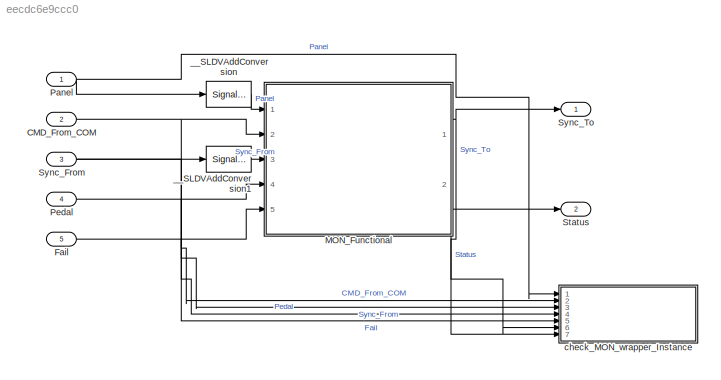
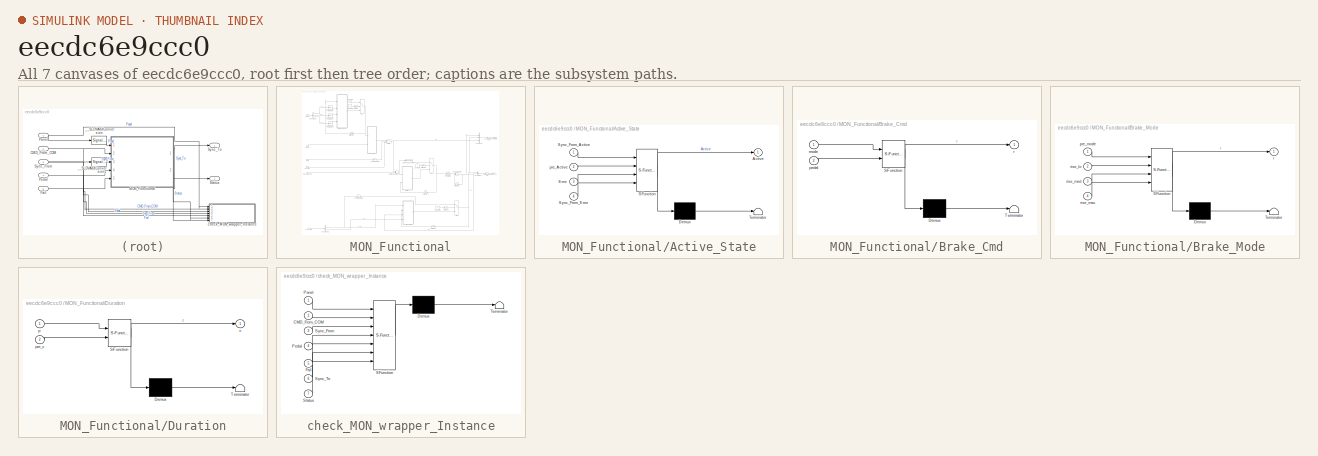
[diagram: thumbnail index - all 7 canvases of the model, root first then tree order]
MODEL slx_eecdc6e9ccc0
KIND model
CONFIG AbsTol = auto
CONFIG FixedStep = auto
CONFIG MaxStep = auto
CONFIG MinStep = auto
CONFIG RelTol = 1e-3
CONFIG SampleTimeConstraint = Unconstrained
CONFIG Solver = FixedStepDiscrete
CONFIG SolverMode = Auto
CONFIG SolverName = FixedStepDiscrete
CONFIG StartTime = 0.0
CONFIG StopTime = 10.0
BLOCK [Inport] CMD_From_COM
  IconDisplay = Port number
  Interpolate = off
  OutDataTypeStr = int32
  Port = 2
  SampleTime = dt
BLOCK [Inport] Fail
  IconDisplay = Port number
  Interpolate = off
  OutDataTypeStr = boolean
  Port = 5
  SampleTime = dt
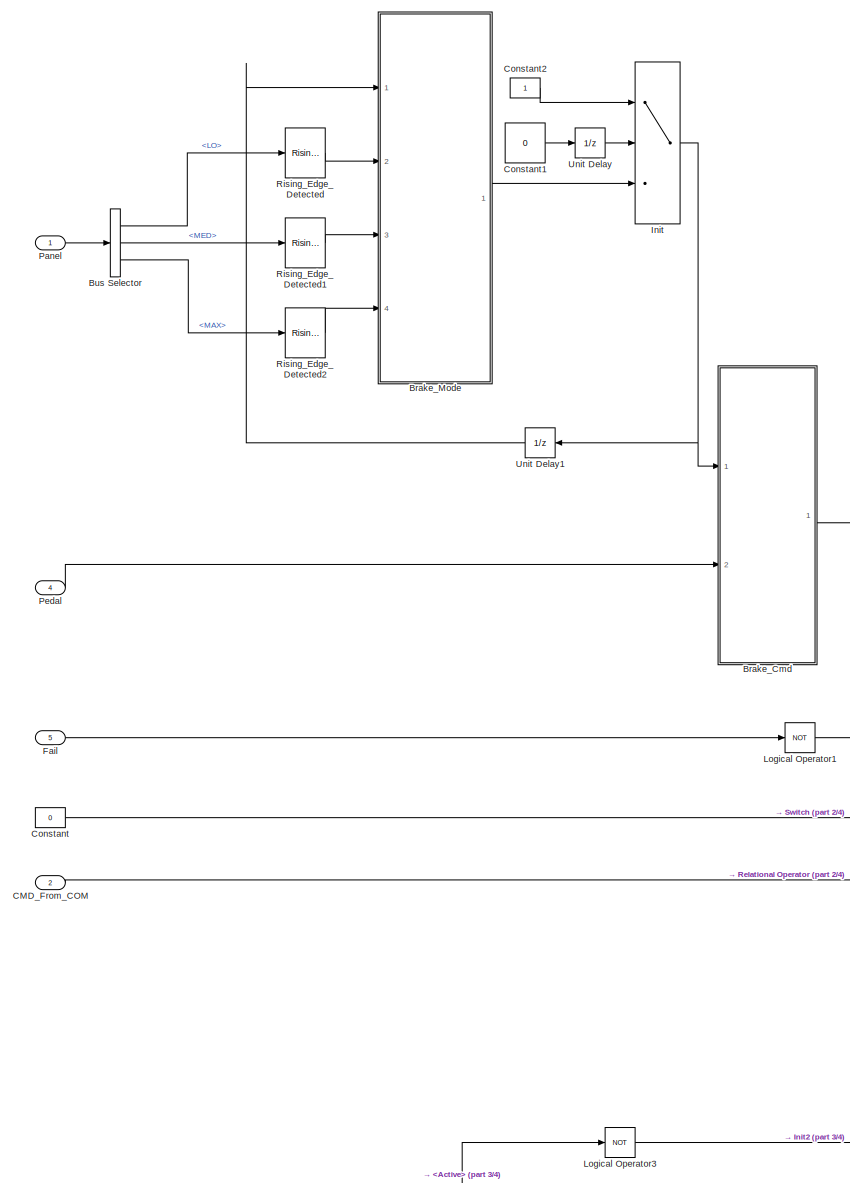
[diagram: MON_Functional - part 1/4, left side, full height]
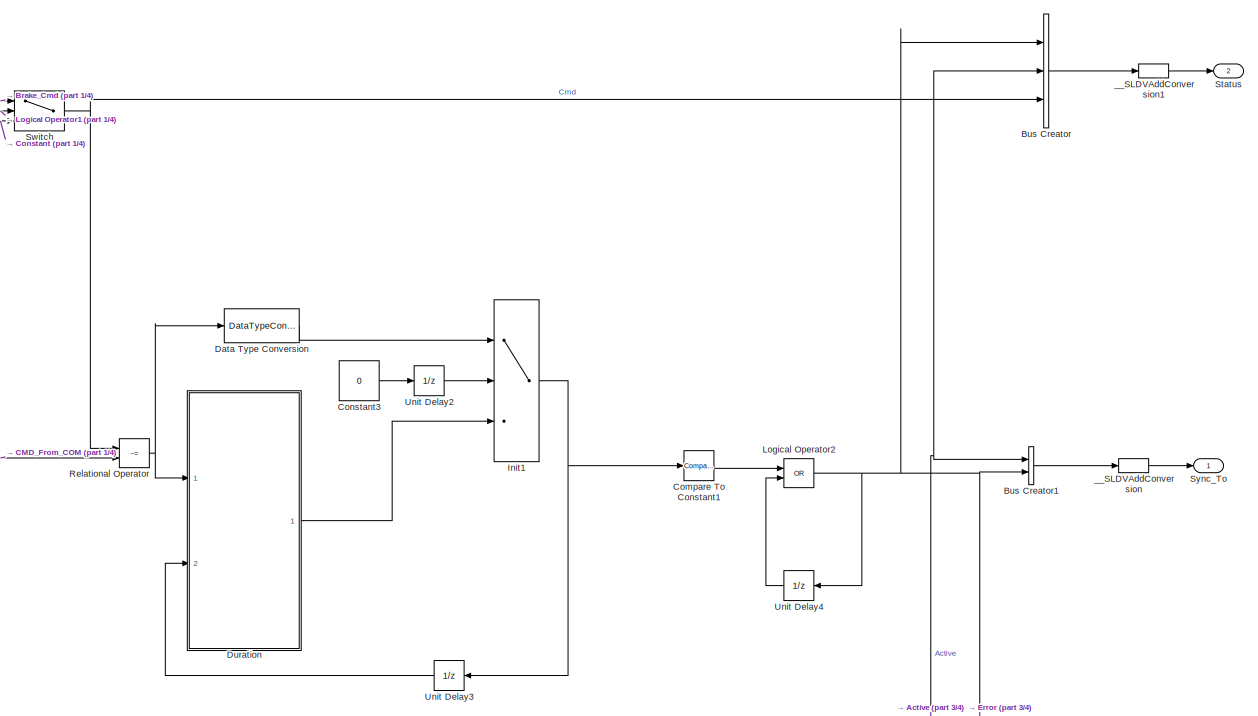
[diagram: MON_Functional - part 2/4, middle right region]
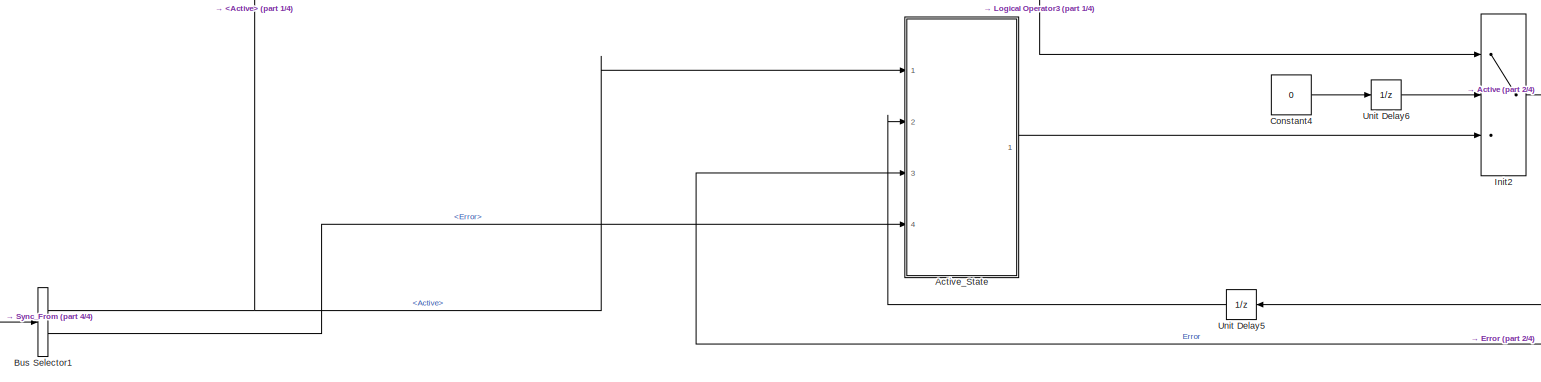
[diagram: MON_Functional - part 3/4, bottom center region]
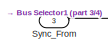
[diagram: MON_Functional - part 4/4, bottom left region]
BLOCK [SubSystem] MON_Functional
  Ports = [5, 2]
  RequestExecContextInheritance = off
  TreatAsAtomicUnit = on
  Variant = off
BLOCK [SubSystem] MON_Functional/Active_State
  ErrorFcn = Stateflow.Translate.translate
  PermitHierarchicalResolution = ExplicitOnly
  Ports = [4, 1]
  RequestExecContextInheritance = off
  SFBlockType = Chart
  TreatAsAtomicUnit = on
  Variant = off
BLOCK [Demux] MON_Functional/Active_State/ Demux 
  Outputs = 1
  Ports = [1, 1]
BLOCK [S-Function] MON_Functional/Active_State/ SFunction 
  EnableBusSupport = on
  FunctionName = sf_sfun
  Parameters = Primary_Side
  PortCounts = [4 2]
  Ports = [4, 2]
  SFunctionDeploymentMode = off
  Tag = Stateflow S-Function MON_sl_after_replacement2 4
BLOCK [Terminator] MON_Functional/Active_State/ Terminator 
BLOCK [Outport] MON_Functional/Active_State/Active
  IconDisplay = Port number
BLOCK [Inport] MON_Functional/Active_State/Error
  IconDisplay = Port number
  Port = 3
BLOCK [Inport] MON_Functional/Active_State/Sync_From_Active
  IconDisplay = Port number
BLOCK [Inport] MON_Functional/Active_State/Sync_From_Error
  IconDisplay = Port number
  Port = 4
BLOCK [Inport] MON_Functional/Active_State/pre_Active
  IconDisplay = Port number
  Port = 2
BLOCK [SubSystem] MON_Functional/Brake_Cmd
  ErrorFcn = Stateflow.Translate.translate
  PermitHierarchicalResolution = ExplicitOnly
  Ports = [2, 1]
  RequestExecContextInheritance = off
  SFBlockType = Chart
  TreatAsAtomicUnit = on
  Variant = off
BLOCK [Demux] MON_Functional/Brake_Cmd/ Demux 
  Outputs = 1
  Ports = [1, 1]
BLOCK [S-Function] MON_Functional/Brake_Cmd/ SFunction 
  EnableBusSupport = on
  FunctionName = sf_sfun
  Parameters = BRAKE_PRESSURE_LO,BRAKE_PRESSURE_MAX,BRAKE_PRESSURE_MED,LO,MANUAL,MAX,MED
  PortCounts = [2 2]
  Ports = [2, 2]
  SFunctionDeploymentMode = off
  Tag = Stateflow S-Function MON_sl_after_replacement2 1
BLOCK [Terminator] MON_Functional/Brake_Cmd/ Terminator 
BLOCK [Inport] MON_Functional/Brake_Cmd/mode
  IconDisplay = Port number
BLOCK [Inport] MON_Functional/Brake_Cmd/pedal
  IconDisplay = Port number
  Port = 2
BLOCK [Outport] MON_Functional/Brake_Cmd/r
  IconDisplay = Port number
BLOCK [SubSystem] MON_Functional/Brake_Mode
  ErrorFcn = Stateflow.Translate.translate
  PermitHierarchicalResolution = ExplicitOnly
  Ports = [4, 1]
  RequestExecContextInheritance = off
  SFBlockType = Chart
  TreatAsAtomicUnit = on
  Variant = off
BLOCK [Demux] MON_Functional/Brake_Mode/ Demux 
  Outputs = 1
  Ports = [1, 1]
BLOCK [S-Function] MON_Functional/Brake_Mode/ SFunction 
  EnableBusSupport = on
  FunctionName = sf_sfun
  Parameters = LO,MANUAL,MAX,MED
  PortCounts = [4 2]
  Ports = [4, 2]
  SFunctionDeploymentMode = off
  Tag = Stateflow S-Function MON_sl_after_replacement2 3
BLOCK [Terminator] MON_Functional/Brake_Mode/ Terminator 
BLOCK [Inport] MON_Functional/Brake_Mode/pre_mode
  IconDisplay = Port number
BLOCK [Outport] MON_Functional/Brake_Mode/r
  IconDisplay = Port number
BLOCK [Inport] MON_Functional/Brake_Mode/rise_lo
  IconDisplay = Port number
  Port = 2
BLOCK [Inport] MON_Functional/Brake_Mode/rise_max
  IconDisplay = Port number
  Port = 4
BLOCK [Inport] MON_Functional/Brake_Mode/rise_med
  IconDisplay = Port number
  Port = 3
BLOCK [BusCreator] MON_Functional/Bus Creator
  DisplayOption = bar
  InheritFromInputs = on
  Inputs = 'Error','Active','Cmd'
  NonVirtualBus = on
  OutDataTypeStr = Bus: ChannelStatusImpl
  Ports = [3, 1]
BLOCK [BusCreator] MON_Functional/Bus Creator1
  DisplayOption = bar
  InheritFromInputs = on
  Inputs = 'Active','Error'
  NonVirtualBus = on
  OutDataTypeStr = Bus: SyncMsgImpl
  Ports = [2, 1]
BLOCK [BusSelector] MON_Functional/Bus Selector
  OutputSignals = LO,MED,MAX
  Ports = [1, 3]
BLOCK [BusSelector] MON_Functional/Bus Selector1
  OutputSignals = Active,Error
  Ports = [1, 2]
BLOCK [Inport] MON_Functional/CMD_From_COM
  IconDisplay = Port number
  OutDataTypeStr = int32
  Port = 2
  PortDimensions = 1
  SampleTime = [0.01,0]
  SamplingMode = Sample based
  SignalType = real
BLOCK [Reference] MON_Functional/Compare To Constant1  REF=simulink/Logic and Bit
Operations/Compare
To Constant
  Ports = [1, 1]
  SourceBlock = simulink/Logic and Bit\nOperations/Compare\nTo Constant
  SourceType = Compare To Constant
BLOCK [Constant] MON_Functional/Constant
  OutDataTypeStr = int32
  Value = 0
BLOCK [Constant] MON_Functional/Constant1
  DisableCoverage = on
  OutDataTypeStr = boolean
  Value = 0
BLOCK [Constant] MON_Functional/Constant2
  OutDataTypeStr = int32
BLOCK [Constant] MON_Functional/Constant3
  DisableCoverage = on
  OutDataTypeStr = boolean
  Value = 0
BLOCK [Constant] MON_Functional/Constant4
  DisableCoverage = on
  OutDataTypeStr = boolean
  Value = 0
BLOCK [DataTypeConversion] MON_Functional/Data Type Conversion
  OutDataTypeStr = int32
  RndMeth = Floor
  SaturateOnIntegerOverflow = off
BLOCK [SubSystem] MON_Functional/Duration
  ErrorFcn = Stateflow.Translate.translate
  PermitHierarchicalResolution = ExplicitOnly
  Ports = [2, 1]
  RequestExecContextInheritance = off
  SFBlockType = Chart
  TreatAsAtomicUnit = on
  Variant = off
BLOCK [Demux] MON_Functional/Duration/ Demux 
  Outputs = 1
  Ports = [1, 1]
BLOCK [S-Function] MON_Functional/Duration/ SFunction 
  EnableBusSupport = on
  FunctionName = sf_sfun
  PortCounts = [2 2]
  Ports = [2, 2]
  SFunctionDeploymentMode = off
  Tag = Stateflow S-Function MON_sl_after_replacement2 5
BLOCK [Terminator] MON_Functional/Duration/ Terminator 
BLOCK [Outport] MON_Functional/Duration/c
  IconDisplay = Port number
BLOCK [Inport] MON_Functional/Duration/p
  IconDisplay = Port number
BLOCK [Inport] MON_Functional/Duration/pre_c
  IconDisplay = Port number
  Port = 2
BLOCK [Inport] MON_Functional/Fail
  IconDisplay = Port number
  OutDataTypeStr = boolean
  Port = 5
  PortDimensions = 1
  SampleTime = [0.01,0]
  SamplingMode = Sample based
  SignalType = real
BLOCK [Switch] MON_Functional/Init
  Criteria = u2 ~= 0
  OutDataTypeStr = Inherit: Inherit via back propagation
  SaturateOnIntegerOverflow = off
  ZeroCross = off
BLOCK [Switch] MON_Functional/Init1
  Criteria = u2 ~= 0
  OutDataTypeStr = Inherit: Inherit via back propagation
  SaturateOnIntegerOverflow = off
  ZeroCross = off
BLOCK [Switch] MON_Functional/Init2
  Criteria = u2 ~= 0
  OutDataTypeStr = Inherit: Inherit via back propagation
  SaturateOnIntegerOverflow = off
  ZeroCross = off
BLOCK [Logic] MON_Functional/Logical Operator1
  Operator = NOT
  OutDataTypeStr = boolean
  Ports = [1, 1]
BLOCK [Logic] MON_Functional/Logical Operator2
  Operator = OR
  OutDataTypeStr = boolean
  Ports = [2, 1]
BLOCK [Logic] MON_Functional/Logical Operator3
  Operator = NOT
  OutDataTypeStr = boolean
  Ports = [1, 1]
BLOCK [Inport] MON_Functional/Panel
  IconDisplay = Port number
  OutDataTypeStr = Bus: PanelMsgImpl
  SampleTime = [0.01,0]
BLOCK [Inport] MON_Functional/Pedal
  IconDisplay = Port number
  OutDataTypeStr = int32
  Port = 4
  PortDimensions = 1
  SampleTime = [0.01,0]
  SamplingMode = Sample based
  SignalType = real
BLOCK [RelationalOperator] MON_Functional/Relational Operator
  Operator = ~=
  OutDataTypeStr = boolean
  Ports = [2, 1]
  ZeroCross = off
BLOCK [Reference] MON_Functional/Rising_Edge_Detected  REF=BSCU_lib/Rising_Edge_Detected
  Ports = [1, 1]
  SourceBlock = BSCU_lib/Rising_Edge_Detected
  SourceType = SubSystem
BLOCK [Reference] MON_Functional/Rising_Edge_Detected1  REF=BSCU_lib/Rising_Edge_Detected
  Ports = [1, 1]
  SourceBlock = BSCU_lib/Rising_Edge_Detected
  SourceType = SubSystem
BLOCK [Reference] MON_Functional/Rising_Edge_Detected2  REF=BSCU_lib/Rising_Edge_Detected
  Ports = [1, 1]
  SourceBlock = BSCU_lib/Rising_Edge_Detected
  SourceType = SubSystem
BLOCK [Outport] MON_Functional/Status
  IconDisplay = Port number
  OutDataTypeStr = Bus: ChannelStatusImpl
  Port = 2
BLOCK [Switch] MON_Functional/Switch
  Description = May be used within well defined functions, or functions that soley define logical expressions.
  SaturateOnIntegerOverflow = off
  Threshold = .5
  ZeroCross = off
BLOCK [Inport] MON_Functional/Sync_From
  IconDisplay = Port number
  OutDataTypeStr = Bus: SyncMsgImpl
  Port = 3
  SampleTime = [0.01,0]
BLOCK [Outport] MON_Functional/Sync_To
  IconDisplay = Port number
  OutDataTypeStr = Bus: SyncMsgImpl
BLOCK [UnitDelay] MON_Functional/Unit Delay
  AttributesFormatString = <Init = %<InitialCondition>>
  InitialCondition = 1
  InputProcessing = Elements as channels (sample based)
  SampleTime = -1
BLOCK [UnitDelay] MON_Functional/Unit Delay1
  AttributesFormatString = <Init = %<InitialCondition>>
  InitialCondition = 1
  InputProcessing = Elements as channels (sample based)
  SampleTime = -1
BLOCK [UnitDelay] MON_Functional/Unit Delay2
  AttributesFormatString = <Init = %<InitialCondition>>
  InitialCondition = 1
  InputProcessing = Elements as channels (sample based)
  SampleTime = -1
BLOCK [UnitDelay] MON_Functional/Unit Delay3
  AttributesFormatString = <Init = %<InitialCondition>>
  InputProcessing = Elements as channels (sample based)
  SampleTime = -1
BLOCK [UnitDelay] MON_Functional/Unit Delay4
  AttributesFormatString = <Init = %<InitialCondition>>
  InputProcessing = Elements as channels (sample based)
  SampleTime = -1
BLOCK [UnitDelay] MON_Functional/Unit Delay5
  AttributesFormatString = <Init = %<InitialCondition>>
  InputProcessing = Elements as channels (sample based)
  SampleTime = -1
BLOCK [UnitDelay] MON_Functional/Unit Delay6
  AttributesFormatString = <Init = %<InitialCondition>>
  InitialCondition = 1
  InputProcessing = Elements as channels (sample based)
  SampleTime = -1
BLOCK [SignalConversion] MON_Functional/__SLDVAddConversion
  ConversionOutput = Virtual bus
  OverrideOpt = off
BLOCK [SignalConversion] MON_Functional/__SLDVAddConversion1
  ConversionOutput = Virtual bus
  OverrideOpt = off
BLOCK [Inport] Panel
  BusOutputAsStruct = on
  IconDisplay = Port number
  Interpolate = off
  OutDataTypeStr = Bus: PanelMsgImpl
  SampleTime = dt
BLOCK [Inport] Pedal
  IconDisplay = Port number
  Interpolate = off
  OutDataTypeStr = int32
  Port = 4
  SampleTime = dt
BLOCK [Outport] Status
  BusOutputAsStruct = on
  IconDisplay = Port number
  OutDataTypeStr = Bus: ChannelStatusImpl
  Port = 2
BLOCK [Inport] Sync_From
  BusOutputAsStruct = on
  IconDisplay = Port number
  Interpolate = off
  OutDataTypeStr = Bus: SyncMsgImpl
  Port = 3
  SampleTime = dt
BLOCK [Outport] Sync_To
  BusOutputAsStruct = on
  IconDisplay = Port number
  OutDataTypeStr = Bus: SyncMsgImpl
BLOCK [SignalConversion] __SLDVAddConversion
  ConversionOutput = Virtual bus
  OverrideOpt = off
BLOCK [SignalConversion] __SLDVAddConversion1
  ConversionOutput = Virtual bus
  OverrideOpt = off
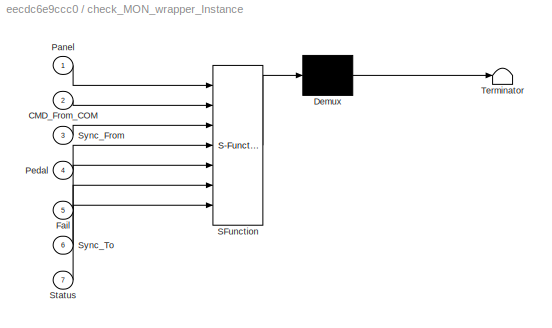
BLOCK [SubSystem] check_MON_wrapper_Instance
  ErrorFcn = Stateflow.Translate.translate
  PermitHierarchicalResolution = ExplicitOnly
  Ports = [7]
  RequestExecContextInheritance = off
  SFBlockType = MATLAB Function
  TreatAsAtomicUnit = on
  Variant = off
BLOCK [Demux] check_MON_wrapper_Instance/ Demux 
  Outputs = 1
  Ports = [1, 1]
BLOCK [S-Function] check_MON_wrapper_Instance/ SFunction 
  EnableBusSupport = on
  FunctionName = sf_sfun
  PortCounts = [7 1]
  Ports = [7, 1]
  SFunctionDeploymentMode = off
  Tag = Stateflow S-Function MON_sl_after_replacement2 2
BLOCK [Terminator] check_MON_wrapper_Instance/ Terminator 
BLOCK [Inport] check_MON_wrapper_Instance/CMD_From_COM
  IconDisplay = Port number
  Port = 2
BLOCK [Inport] check_MON_wrapper_Instance/Fail
  IconDisplay = Port number
  Port = 5
BLOCK [Inport] check_MON_wrapper_Instance/Panel
  IconDisplay = Port number
BLOCK [Inport] check_MON_wrapper_Instance/Pedal
  IconDisplay = Port number
  Port = 4
BLOCK [Inport] check_MON_wrapper_Instance/Status
  IconDisplay = Port number
  Port = 7
BLOCK [Inport] check_MON_wrapper_Instance/Sync_From
  IconDisplay = Port number
  Port = 3
BLOCK [Inport] check_MON_wrapper_Instance/Sync_To
  IconDisplay = Port number
  Port = 6
NET CMD_From_COM:1 -> MON_Functional:2, check_MON_wrapper_Instance:2
NET Fail:1 -> MON_Functional:5, check_MON_wrapper_Instance:5
LINE MON_Functional/Active_State:1 -> MON_Functional/Init2:3
LINE MON_Functional/Brake_Cmd:1 -> MON_Functional/Switch:1
LINE MON_Functional/Brake_Mode:1 -> MON_Functional/Init:3
LINE MON_Functional/Bus Creator1:1 -> MON_Functional/__SLDVAddConversion:1
LINE MON_Functional/Bus Creator:1 -> MON_Functional/__SLDVAddConversion1:1
NET MON_Functional/Bus Selector1:1 -> MON_Functional/Active_State:1, MON_Functional/Logical Operator3:1
LINE MON_Functional/Bus Selector1:2 -> MON_Functional/Active_State:4
LINE MON_Functional/Bus Selector:1 -> MON_Functional/Rising_Edge_Detected:1
LINE MON_Functional/Bus Selector:2 -> MON_Functional/Rising_Edge_Detected1:1
LINE MON_Functional/Bus Selector:3 -> MON_Functional/Rising_Edge_Detected2:1
LINE MON_Functional/CMD_From_COM:1 -> MON_Functional/Relational Operator:2
LINE MON_Functional/Compare To Constant1:1 -> MON_Functional/Logical Operator2:1
LINE MON_Functional/Constant1:1 -> MON_Functional/Unit Delay:1
LINE MON_Functional/Constant2:1 -> MON_Functional/Init:1
LINE MON_Functional/Constant3:1 -> MON_Functional/Unit Delay2:1
LINE MON_Functional/Constant4:1 -> MON_Functional/Unit Delay6:1
LINE MON_Functional/Constant:1 -> MON_Functional/Switch:3
LINE MON_Functional/Data Type Conversion:1 -> MON_Functional/Init1:1
LINE MON_Functional/Duration:1 -> MON_Functional/Init1:3
LINE MON_Functional/Fail:1 -> MON_Functional/Logical Operator1:1
NET MON_Functional/Init1:1 -> MON_Functional/Compare To Constant1:1, MON_Functional/Unit Delay3:1
NET MON_Functional/Init2:1 -> MON_Functional/Bus Creator1:1, MON_Functional/Bus Creator:2, MON_Functional/Unit Delay5:1
NET MON_Functional/Init:1 -> MON_Functional/Brake_Cmd:1, MON_Functional/Unit Delay1:1
LINE MON_Functional/Logical Operator1:1 -> MON_Functional/Switch:2
NET MON_Functional/Logical Operator2:1 -> MON_Functional/Active_State:3, MON_Functional/Bus Creator1:2, MON_Functional/Bus Creator:1, MON_Functional/Unit Delay4:1
LINE MON_Functional/Logical Operator3:1 -> MON_Functional/Init2:1
LINE MON_Functional/Panel:1 -> MON_Functional/Bus Selector:1
LINE MON_Functional/Pedal:1 -> MON_Functional/Brake_Cmd:2
NET MON_Functional/Relational Operator:1 -> MON_Functional/Data Type Conversion:1, MON_Functional/Duration:1
LINE MON_Functional/Rising_Edge_Detected1:1 -> MON_Functional/Brake_Mode:3
LINE MON_Functional/Rising_Edge_Detected2:1 -> MON_Functional/Brake_Mode:4
LINE MON_Functional/Rising_Edge_Detected:1 -> MON_Functional/Brake_Mode:2
NET MON_Functional/Switch:1 -> MON_Functional/Bus Creator:3, MON_Functional/Relational Operator:1
LINE MON_Functional/Sync_From:1 -> MON_Functional/Bus Selector1:1
LINE MON_Functional/Unit Delay1:1 -> MON_Functional/Brake_Mode:1
LINE MON_Functional/Unit Delay2:1 -> MON_Functional/Init1:2
LINE MON_Functional/Unit Delay3:1 -> MON_Functional/Duration:2
LINE MON_Functional/Unit Delay4:1 -> MON_Functional/Logical Operator2:2
LINE MON_Functional/Unit Delay5:1 -> MON_Functional/Active_State:2
LINE MON_Functional/Unit Delay6:1 -> MON_Functional/Init2:2
LINE MON_Functional/Unit Delay:1 -> MON_Functional/Init:2
LINE MON_Functional/__SLDVAddConversion1:1 -> MON_Functional/Status:1
LINE MON_Functional/__SLDVAddConversion:1 -> MON_Functional/Sync_To:1
NET MON_Functional:1 -> Sync_To:1, check_MON_wrapper_Instance:6
NET MON_Functional:2 -> Status:1, check_MON_wrapper_Instance:7
NET Panel:1 -> __SLDVAddConversion:1, check_MON_wrapper_Instance:1
NET Pedal:1 -> MON_Functional:4, check_MON_wrapper_Instance:4
NET Sync_From:1 -> __SLDVAddConversion1:1, check_MON_wrapper_Instance:3
LINE __SLDVAddConversion1:1 -> MON_Functional:3
LINE __SLDVAddConversion:1 -> MON_Functional:1
note: NET lines group one-source signal fan-out (src -> all destinations, sorted); 1:1 wires keep LINE
CHART MON_Functional/Brake_Cmd states=0 transitions=15
CHART check_MON_wrapper_Instance states=1 transitions=1
  STATE_LABEL 'eML_blk_kernel()'
  STATE_LABEL 'SCRIPT:\nfunction check_MON_wrapper_Instance(Panel, CMD_From_COM, Sync_From, Pedal, Fail, Sync_To, Status)\n\npersistent pre_c_Agree_Nodes__Duration_0\npersistent pre_p_Agree_Nodes__Rise_2_Agree_Nodes__Brake_Mode_0\npersistent pre_mode_Agree_Nodes__Brake_Mode_0\npersistent pre_Active\npersistent first_time\npersistent pre_p_Agree_Nodes__Rise_0_Agree_Nodes__Brake_Mode_0\npersistent pre_p_Agree_Nodes__Rise_1...<+3608ch>'
CHART MON_Functional/Brake_Mode states=0 transitions=18
CHART MON_Functional/Active_State states=0 transitions=14
CHART MON_Functional/Duration states=0 transitions=6
